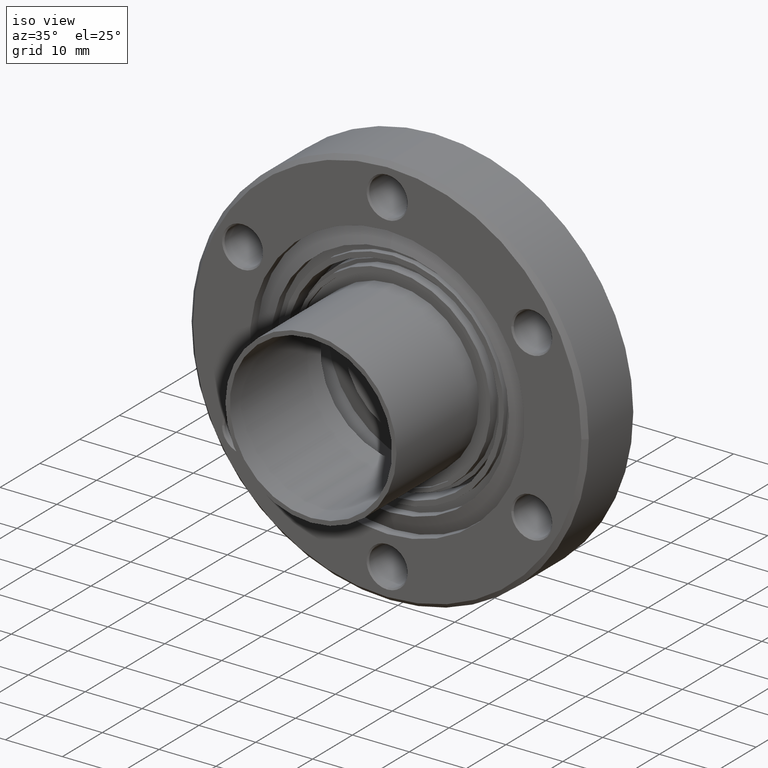
[diagram: clean part render]
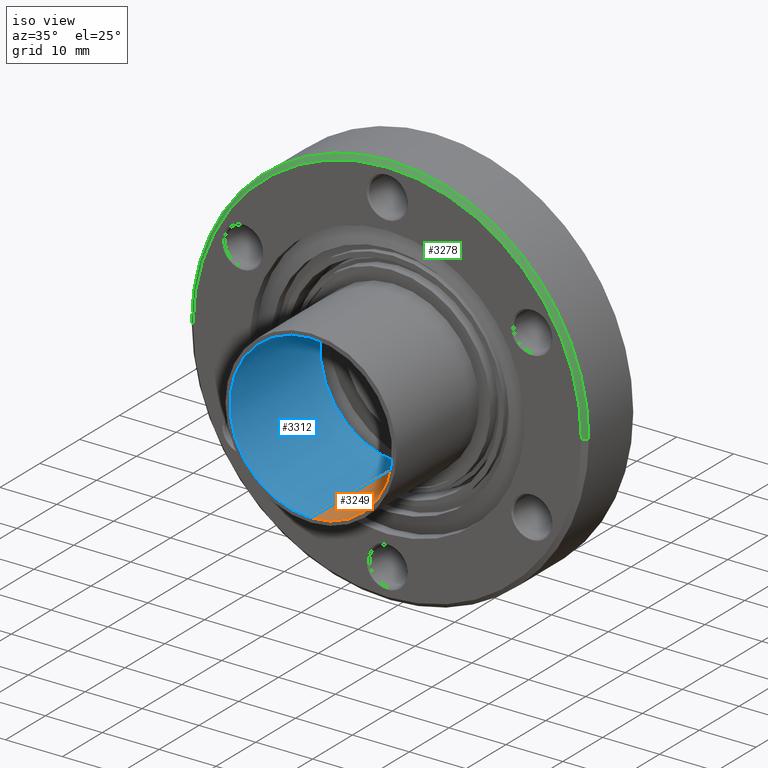
[diagram: same view with three faces highlighted in distinct colors, each labeled with its STEP entity id]
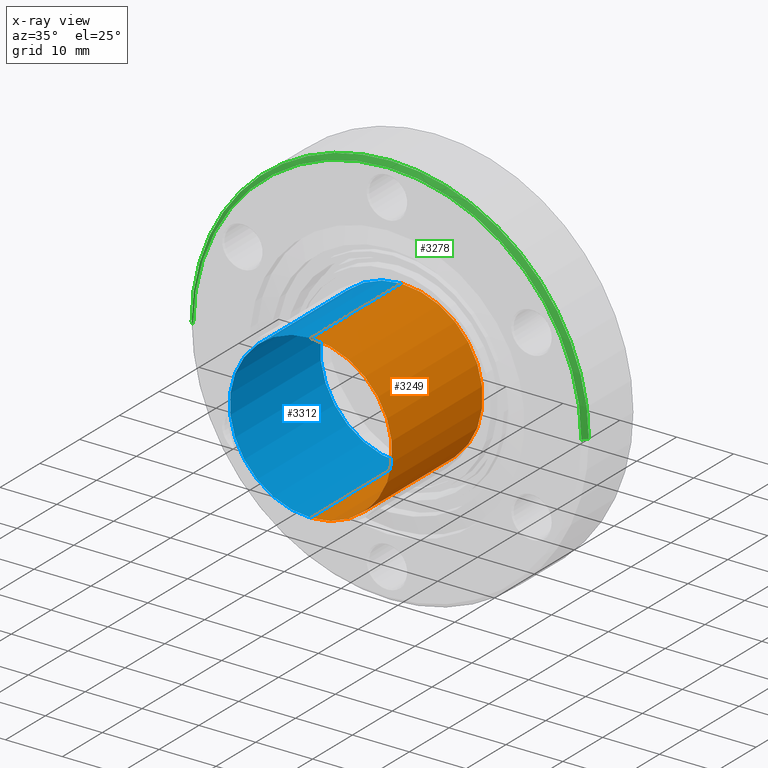
[diagram: x-ray of the same camera — body ghosted, the three highlighted faces saturated]
A machine part, iso view with three faces highlighted in distinct colors.
The next image is the same camera in x-ray (body ghosted, the three faces saturated) — at least one of them is partly hidden behind the body in this view.
Their STEP definitions:

[orange] entity #3249 — the highlighted cylindrical surface (partial cylindrical patch) has radius 14.2875 mm, axis along (0, 1, 0).
#171 = AXIS2_PLACEMENT_3D ( 'NONE', #3690, #3687, #3686 ) ;
#368 = VECTOR ( 'NONE', #3001, 39.37007874015748100 ) ;
#391 = LINE ( 'NONE', #521, #368 ) ;
#521 = CARTESIAN_POINT ( 'NONE',  ( 5.575768836575837900E-017, -0.3790000000000033900, 0.5625000000000002200 ) ) ;
#702 = EDGE_LOOP ( 'NONE', ( #2401, #2402, #2404, #2408 ) ) ;
#791 = CIRCLE ( 'NONE', #1196, 0.5625000000000002200 ) ;
#823 = CIRCLE ( 'NONE', #1358, 0.5625000000000002200 ) ;
#929 = EDGE_CURVE ( 'NONE', #1663, #1745, #823, .T. ) ;
#934 = EDGE_CURVE ( 'NONE', #1624, #1659, #791, .T. ) ;
#1103 = EDGE_CURVE ( 'NONE', #1663, #1624, #3166, .T. ) ;
#1105 = EDGE_CURVE ( 'NONE', #1745, #1659, #391, .T. ) ;
#1196 = AXIS2_PLACEMENT_3D ( 'NONE', #3487, #3488, #3490 ) ;
#1358 = AXIS2_PLACEMENT_3D ( 'NONE', #3370, #3367, #3374 ) ;
#1624 = VERTEX_POINT ( 'NONE', #1982 ) ;
#1659 = VERTEX_POINT ( 'NONE', #1998 ) ;
#1663 = VERTEX_POINT ( 'NONE', #2002 ) ;
#1745 = VERTEX_POINT ( 'NONE', #2066 ) ;
#1982 = CARTESIAN_POINT ( 'NONE',  ( 1.245952674468122400E-016, -0.3590000000000033700, -0.5625000000000002200 ) ) ;
#1998 = CARTESIAN_POINT ( 'NONE',  ( 5.575997156440094300E-017, -0.3590000000000033700, 0.5625000000000002200 ) ) ;
#2002 = CARTESIAN_POINT ( 'NONE',  ( 1.245952674468122400E-016, -1.254000000000003100, -0.5625000000000002200 ) ) ;
#2066 = CARTESIAN_POINT ( 'NONE',  ( 5.565779842514630600E-017, -1.254000000000003100, 0.5625000000000002200 ) ) ;
#2401 = ORIENTED_EDGE ( 'NONE', *, *, #1103, .F. ) ;
#2402 = ORIENTED_EDGE ( 'NONE', *, *, #929, .T. ) ;
#2404 = ORIENTED_EDGE ( 'NONE', *, *, #1105, .T. ) ;
#2408 = ORIENTED_EDGE ( 'NONE', *, *, #934, .F. ) ;
#2642 = FACE_OUTER_BOUND ( 'NONE', #702, .T. ) ;
#2644 = CYLINDRICAL_SURFACE ( 'NONE', #171, 0.5625000000000002200 ) ;
#2996 = DIRECTION ( 'NONE',  ( 1.141599321280891100E-019, 1.000000000000000000, 3.469013207046117200E-018 ) ) ;
#3000 = CARTESIAN_POINT ( 'NONE',  ( 1.246440708177970100E-016, -0.3790000000000033900, -0.5625000000000002200 ) ) ;
#3001 = DIRECTION ( 'NONE',  ( 1.141599321280891100E-019, 1.000000000000000000, 3.469013207046117200E-018 ) ) ;
#3166 = LINE ( 'NONE', #3000, #3170 ) ;
#3170 = VECTOR ( 'NONE', #2996, 39.37007874015748100 ) ;
#3249 = ADVANCED_FACE ( 'NONE', ( #2642 ), #2644, .F. ) ;
#3367 = DIRECTION ( 'NONE',  ( -1.141599321280891100E-019, -1.000000000000000000, -3.469013207046116800E-018 ) ) ;
#3370 = CARTESIAN_POINT ( 'NONE',  ( 5.565779842514630600E-017, -1.254000000000003100, -2.933228081545353200E-017 ) ) ;
#3374 = DIRECTION ( 'NONE',  ( 0.0000000000000000000, 0.0000000000000000000, 1.000000000000000000 ) ) ;
#3487 = CARTESIAN_POINT ( 'NONE',  ( 5.575997156440094300E-017, -0.3590000000000033700, -2.622751399514726000E-017 ) ) ;
#3488 = DIRECTION ( 'NONE',  ( -1.141599321280891100E-019, -1.000000000000000000, -3.469013207046116800E-018 ) ) ;
#3490 = DIRECTION ( 'NONE',  ( 0.0000000000000000000, 0.0000000000000000000, 1.000000000000000000 ) ) ;
#3686 = DIRECTION ( 'NONE',  ( 0.0000000000000000000, 0.0000000000000000000, 1.000000000000000000 ) ) ;
#3687 = DIRECTION ( 'NONE',  ( 1.141599321280891100E-019, 1.000000000000000000, 3.469013207046116800E-018 ) ) ;
#3690 = CARTESIAN_POINT ( 'NONE',  ( 5.575768836575837900E-017, -0.3790000000000033900, -2.629689425928818300E-017 ) ) ;

[blue] entity #3312 — the highlighted cylindrical surface (partial cylindrical patch) has radius 14.2875 mm, axis along (0, 1, 0).
#118 = AXIS2_PLACEMENT_3D ( 'NONE', #3892, #3890, #3888 ) ;
#368 = VECTOR ( 'NONE', #3001, 39.37007874015748100 ) ;
#391 = LINE ( 'NONE', #521, #368 ) ;
#521 = CARTESIAN_POINT ( 'NONE',  ( 5.575768836575837900E-017, -0.3790000000000033900, 0.5625000000000002200 ) ) ;
#668 = EDGE_LOOP ( 'NONE', ( #2483, #2444, #2523, #2518 ) ) ;
#1102 = EDGE_CURVE ( 'NONE', #1745, #1663, #3167, .T. ) ;
#1103 = EDGE_CURVE ( 'NONE', #1663, #1624, #3166, .T. ) ;
#1104 = EDGE_CURVE ( 'NONE', #1659, #1624, #3169, .T. ) ;
#1105 = EDGE_CURVE ( 'NONE', #1745, #1659, #391, .T. ) ;
#1295 = AXIS2_PLACEMENT_3D ( 'NONE', #2999, #2998, #2997 ) ;
#1320 = AXIS2_PLACEMENT_3D ( 'NONE', #2994, #2993, #2992 ) ;
#1624 = VERTEX_POINT ( 'NONE', #1982 ) ;
#1659 = VERTEX_POINT ( 'NONE', #1998 ) ;
#1663 = VERTEX_POINT ( 'NONE', #2002 ) ;
#1745 = VERTEX_POINT ( 'NONE', #2066 ) ;
#1982 = CARTESIAN_POINT ( 'NONE',  ( 1.245952674468122400E-016, -0.3590000000000033700, -0.5625000000000002200 ) ) ;
#1998 = CARTESIAN_POINT ( 'NONE',  ( 5.575997156440094300E-017, -0.3590000000000033700, 0.5625000000000002200 ) ) ;
#2002 = CARTESIAN_POINT ( 'NONE',  ( 1.245952674468122400E-016, -1.254000000000003100, -0.5625000000000002200 ) ) ;
#2066 = CARTESIAN_POINT ( 'NONE',  ( 5.565779842514630600E-017, -1.254000000000003100, 0.5625000000000002200 ) ) ;
#2444 = ORIENTED_EDGE ( 'NONE', *, *, #1103, .T. ) ;
#2483 = ORIENTED_EDGE ( 'NONE', *, *, #1102, .T. ) ;
#2518 = ORIENTED_EDGE ( 'NONE', *, *, #1105, .F. ) ;
#2523 = ORIENTED_EDGE ( 'NONE', *, *, #1104, .F. ) ;
#2762 = FACE_OUTER_BOUND ( 'NONE', #668, .T. ) ;
#2774 = CYLINDRICAL_SURFACE ( 'NONE', #118, 0.5625000000000002200 ) ;
#2992 = DIRECTION ( 'NONE',  ( 0.0000000000000000000, 0.0000000000000000000, 1.000000000000000000 ) ) ;
#2993 = DIRECTION ( 'NONE',  ( -1.141599321280891100E-019, -1.000000000000000000, -3.469013207046116800E-018 ) ) ;
#2994 = CARTESIAN_POINT ( 'NONE',  ( 5.575997156440094300E-017, -0.3590000000000033700, -2.622751399514726000E-017 ) ) ;
#2996 = DIRECTION ( 'NONE',  ( 1.141599321280891100E-019, 1.000000000000000000, 3.469013207046117200E-018 ) ) ;
#2997 = DIRECTION ( 'NONE',  ( 0.0000000000000000000, 0.0000000000000000000, 1.000000000000000000 ) ) ;
#2998 = DIRECTION ( 'NONE',  ( -1.141599321280891100E-019, -1.000000000000000000, -3.469013207046116800E-018 ) ) ;
#2999 = CARTESIAN_POINT ( 'NONE',  ( 5.565779842514630600E-017, -1.254000000000003100, -2.933228081545353200E-017 ) ) ;
#3000 = CARTESIAN_POINT ( 'NONE',  ( 1.246440708177970100E-016, -0.3790000000000033900, -0.5625000000000002200 ) ) ;
#3001 = DIRECTION ( 'NONE',  ( 1.141599321280891100E-019, 1.000000000000000000, 3.469013207046117200E-018 ) ) ;
#3166 = LINE ( 'NONE', #3000, #3170 ) ;
#3167 = CIRCLE ( 'NONE', #1295, 0.5625000000000002200 ) ;
#3169 = CIRCLE ( 'NONE', #1320, 0.5625000000000002200 ) ;
#3170 = VECTOR ( 'NONE', #2996, 39.37007874015748100 ) ;
#3312 = ADVANCED_FACE ( 'NONE', ( #2762 ), #2774, .F. ) ;
#3888 = DIRECTION ( 'NONE',  ( 0.0000000000000000000, 0.0000000000000000000, 1.000000000000000000 ) ) ;
#3890 = DIRECTION ( 'NONE',  ( 1.141599321280891100E-019, 1.000000000000000000, 3.469013207046116800E-018 ) ) ;
#3892 = CARTESIAN_POINT ( 'NONE',  ( 5.575768836575837900E-017, -0.3790000000000033900, -2.629689425928818300E-017 ) ) ;

[green] entity #3278 — the highlighted conical surface has half-angle 45 deg.
#218 = AXIS2_PLACEMENT_3D ( 'NONE', #1138, #1919, #1920 ) ;
#274 = VERTEX_POINT ( 'NONE', #2345 ) ;
#288 = VERTEX_POINT ( 'NONE', #2331 ) ;
#295 = VERTEX_POINT ( 'NONE', #2322 ) ;
#296 = VERTEX_POINT ( 'NONE', #2321 ) ;
#297 = VERTEX_POINT ( 'NONE', #2320 ) ;
#356 = AXIS2_PLACEMENT_3D ( 'NONE', #3786, #3784, #3782 ) ;
#371 = CIRCLE ( 'NONE', #218, 1.374999999999998900 ) ;
#632 = ORIENTED_EDGE ( 'NONE', *, *, #1044, .T. ) ;
#767 = EDGE_LOOP ( 'NONE', ( #833, #838, #864, #632, #887 ) ) ;
#833 = ORIENTED_EDGE ( 'NONE', *, *, #977, .F. ) ;
#838 = ORIENTED_EDGE ( 'NONE', *, *, #975, .T. ) ;
#864 = ORIENTED_EDGE ( 'NONE', *, *, #1120, .T. ) ;
#887 = ORIENTED_EDGE ( 'NONE', *, *, #1030, .F. ) ;
#975 = EDGE_CURVE ( 'NONE', #274, #297, #2180, .T. ) ;
#977 = EDGE_CURVE ( 'NONE', #274, #288, #2160, .T. ) ;
#1030 = EDGE_CURVE ( 'NONE', #288, #295, #2272, .T. ) ;
#1044 = EDGE_CURVE ( 'NONE', #296, #295, #2252, .T. ) ;
#1120 = EDGE_CURVE ( 'NONE', #297, #296, #371, .T. ) ;
#1138 = CARTESIAN_POINT ( 'NONE',  ( 0.0000000000000000000, -0.4699999999999903700, 0.0000000000000000000 ) ) ;
#1287 = AXIS2_PLACEMENT_3D ( 'NONE', #3330, #3329, #3328 ) ;
#1301 = AXIS2_PLACEMENT_3D ( 'NONE', #3046, #3045, #3044 ) ;
#1437 = DIRECTION ( 'NONE',  ( -0.7071067811864388800, 0.7071067811866561500, 0.0000000000000000000 ) ) ;
#1598 = CARTESIAN_POINT ( 'NONE',  ( -1.374999999999999300, -0.4699999999999903700, 0.0000000000000000000 ) ) ;
#1919 = DIRECTION ( 'NONE',  ( -0.0000000000000000000, -1.000000000000000000, -0.0000000000000000000 ) ) ;
#1920 = DIRECTION ( 'NONE',  ( -8.881784197001252300E-016, -9.933992704233692600E-017, 1.000000000000000000 ) ) ;
#2159 = VECTOR ( 'NONE', #3353, 39.37007874015748100 ) ;
#2160 = CIRCLE ( 'NONE', #1287, 1.344999999999999100 ) ;
#2180 = LINE ( 'NONE', #3340, #2159 ) ;
#2252 = CIRCLE ( 'NONE', #1301, 1.374999999999998900 ) ;
#2267 = VECTOR ( 'NONE', #1437, 39.37007874015748100 ) ;
#2272 = LINE ( 'NONE', #1598, #2267 ) ;
#2320 = CARTESIAN_POINT ( 'NONE',  ( 1.374999999999999300, -0.4699999999999903700, 1.683889348827609500E-016 ) ) ;
#2321 = CARTESIAN_POINT ( 'NONE',  ( 1.683889348827610000E-016, -0.4699999999999903700, 1.374999999999999100 ) ) ;
#2322 = CARTESIAN_POINT ( 'NONE',  ( -1.374999999999999300, -0.4699999999999903700, 0.0000000000000000000 ) ) ;
#2331 = CARTESIAN_POINT ( 'NONE',  ( -1.344999999999999100, -0.4999999999999996100, 0.0000000000000000000 ) ) ;
#2345 = CARTESIAN_POINT ( 'NONE',  ( 1.344999999999999100, -0.4999999999999996100, 1.665519646840399400E-016 ) ) ;
#2695 = FACE_OUTER_BOUND ( 'NONE', #767, .T. ) ;
#2703 = CONICAL_SURFACE ( 'NONE', #356, 1.374999999999999300, 0.7853981633972946200 ) ;
#3044 = DIRECTION ( 'NONE',  ( 0.0000000000000000000, -9.933992704233692600E-017, 1.000000000000000000 ) ) ;
#3045 = DIRECTION ( 'NONE',  ( -0.0000000000000000000, -1.000000000000000000, -0.0000000000000000000 ) ) ;
#3046 = CARTESIAN_POINT ( 'NONE',  ( 0.0000000000000000000, -0.4699999999999903700, 0.0000000000000000000 ) ) ;
#3278 = ADVANCED_FACE ( 'NONE', ( #2695 ), #2703, .T. ) ;
#3328 = DIRECTION ( 'NONE',  ( -1.000000000000000000, 0.0000000000000000000, 0.0000000000000000000 ) ) ;
#3329 = DIRECTION ( 'NONE',  ( 2.483498176058422200E-017, -1.000000000000000000, -0.0000000000000000000 ) ) ;
#3330 = CARTESIAN_POINT ( 'NONE',  ( 7.450494528177578800E-019, -0.4999999999999996100, 0.0000000000000000000 ) ) ;
#3340 = CARTESIAN_POINT ( 'NONE',  ( 1.374999999999999300, -0.4699999999999902000, 1.683889348827610000E-016 ) ) ;
#3353 = DIRECTION ( 'NONE',  ( 0.7071067811864388800, 0.7071067811866561500, 8.659560562353602900E-017 ) ) ;
#3782 = DIRECTION ( 'NONE',  ( -1.000000000000000000, -4.966996352116844500E-017, 0.0000000000000000000 ) ) ;
#3784 = DIRECTION ( 'NONE',  ( -2.483498176058422200E-017, 1.000000000000000000, 0.0000000000000000000 ) ) ;
#3786 = CARTESIAN_POINT ( 'NONE',  ( 0.0000000000000000000, -0.4699999999999902600, 0.0000000000000000000 ) ) ;